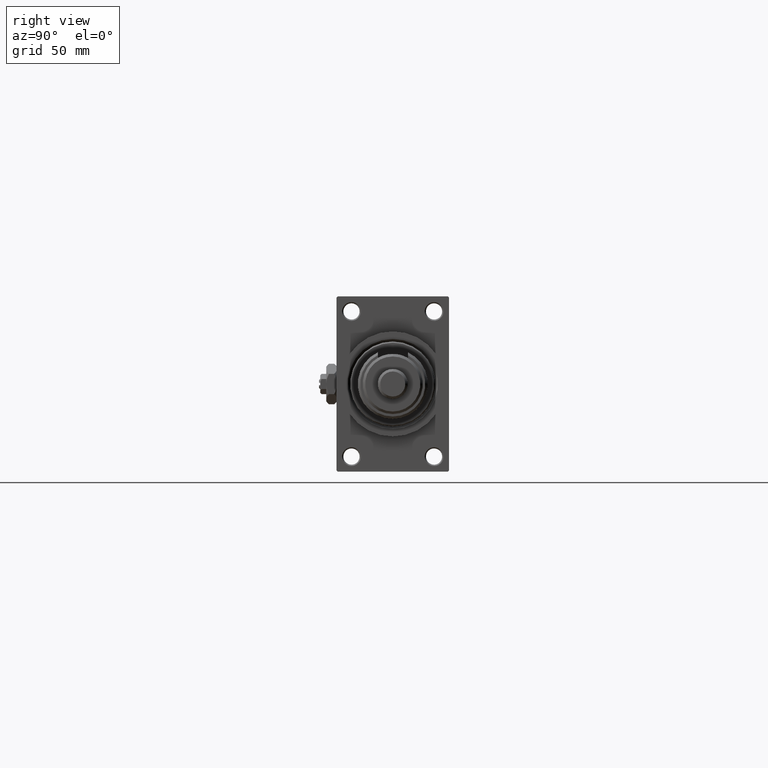
[diagram: clean part render]
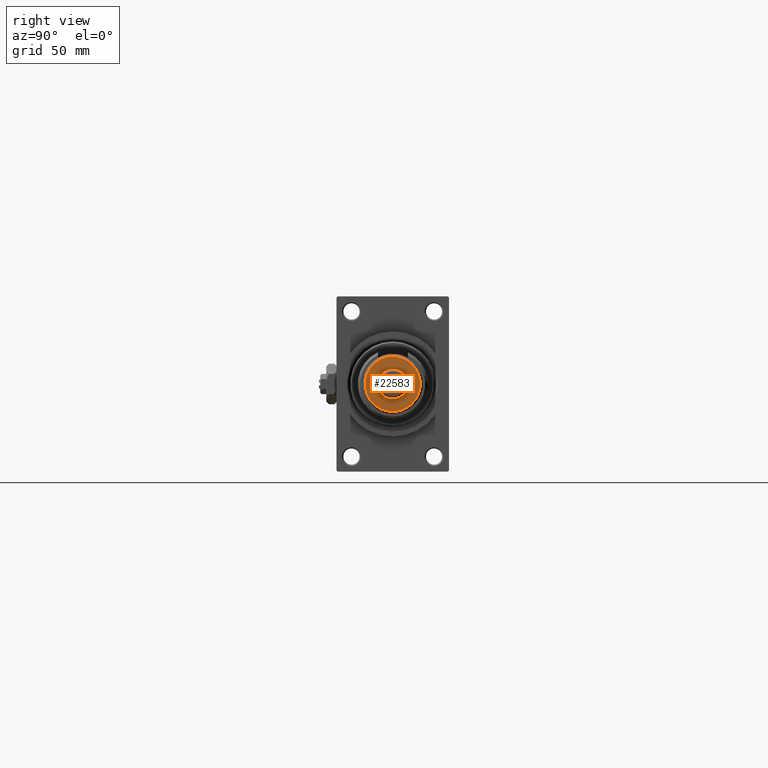
[diagram: same view with one face highlighted and labeled with its STEP entity id]
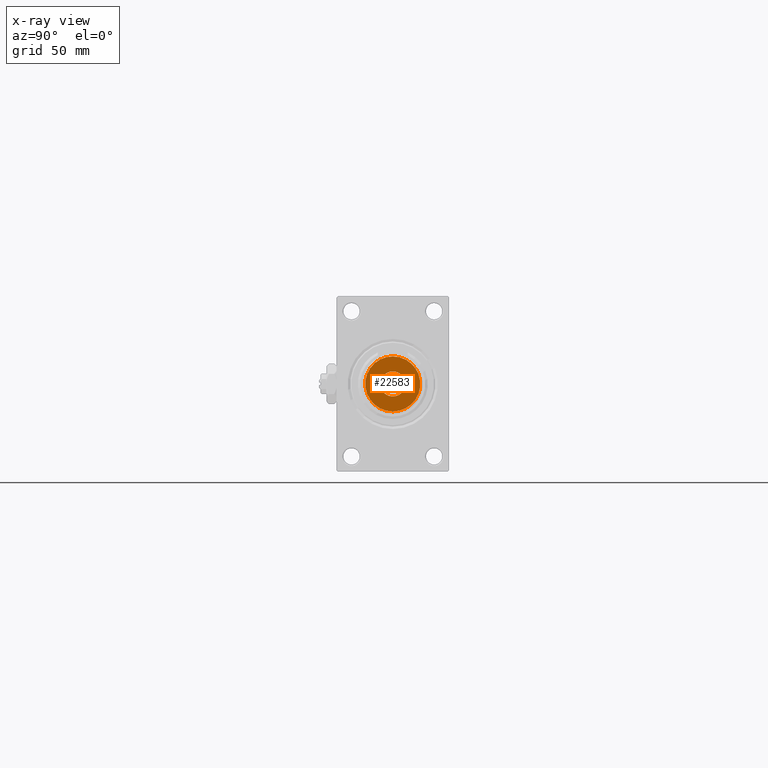
[diagram: x-ray of the same camera — body ghosted, the highlighted face saturated]
A machine part, right view. The second image highlights one B-rep face of the part: STEP entity #22583.
The next image is the same camera in x-ray: the body ghosted, the highlighted face saturated — about 0% of this face is hidden behind the body in this view.
In plain terms, the highlighted planar face has unit normal (1, 0, 0).
Its self-contained STEP definition (entity closure, byte-faithful):
#923 = DIRECTION ( 'NONE',  ( 1.000000000000000000, 0.000000000000000000, 0.000000000000000000 ) ) ;
#2293 = CIRCLE ( 'NONE', #43413, 10.99999999999999645 ) ;
#3046 = ORIENTED_EDGE ( 'NONE', *, *, #43803, .F. ) ;
#4205 = DIRECTION ( 'NONE',  ( 1.000000000000000000, 0.000000000000000000, -0.000000000000000000 ) ) ;
#6869 = VERTEX_POINT ( 'NONE', #48601 ) ;
#9583 = EDGE_CURVE ( 'NONE', #24597, #23475, #2293, .T. ) ;
#12270 = CARTESIAN_POINT ( 'NONE',  ( 0.000000000000000000, 0.000000000000000000, 22.00000000000000000 ) ) ;
#13178 = AXIS2_PLACEMENT_3D ( 'NONE', #32329, #24469, #16071 ) ;
#14109 = CARTESIAN_POINT ( 'NONE',  ( 10.99999999999999645, 1.408343819019456176E-15, 22.00000000000000000 ) ) ;
#15284 = FACE_BOUND ( 'NONE', #33699, .T. ) ;
#16071 = DIRECTION ( 'NONE',  ( 1.000000000000000000, 0.000000000000000000, 0.000000000000000000 ) ) ;
#16568 = CIRCLE ( 'NONE', #13178, 5.000000000000000000 ) ;
#17647 = CARTESIAN_POINT ( 'NONE',  ( 0.000000000000000000, 0.000000000000000000, 22.00000000000000000 ) ) ;
#19015 = CARTESIAN_POINT ( 'NONE',  ( 0.000000000000000000, 0.000000000000000000, 22.00000000000000000 ) ) ;
#19508 = CIRCLE ( 'NONE', #21186, 10.99999999999999645 ) ;
#19589 = EDGE_CURVE ( 'NONE', #23475, #24597, #19508, .T. ) ;
#20137 = DIRECTION ( 'NONE',  ( 0.000000000000000000, 0.000000000000000000, 1.000000000000000000 ) ) ;
#21186 = AXIS2_PLACEMENT_3D ( 'NONE', #12270, #20137, #923 ) ;
#22156 = DIRECTION ( 'NONE',  ( 1.000000000000000000, 0.000000000000000000, 0.000000000000000000 ) ) ;
#22583 = ADVANCED_FACE ( 'NONE', ( #39675, #15284 ), #51763, .T. ) ;
#23475 = VERTEX_POINT ( 'NONE', #46241 ) ;
#23951 = CARTESIAN_POINT ( 'NONE',  ( 0.000000000000000000, 0.000000000000000000, 22.00000000000000000 ) ) ;
#24469 = DIRECTION ( 'NONE',  ( 0.000000000000000000, 0.000000000000000000, 1.000000000000000000 ) ) ;
#24597 = VERTEX_POINT ( 'NONE', #14109 ) ;
#26107 = ORIENTED_EDGE ( 'NONE', *, *, #9583, .T. ) ;
#27373 = DIRECTION ( 'NONE',  ( 0.000000000000000000, 0.000000000000000000, 1.000000000000000000 ) ) ;
#29235 = DIRECTION ( 'NONE',  ( 0.000000000000000000, 0.000000000000000000, 1.000000000000000000 ) ) ;
#30026 = ORIENTED_EDGE ( 'NONE', *, *, #51184, .F. ) ;
#32329 = CARTESIAN_POINT ( 'NONE',  ( 0.000000000000000000, 0.000000000000000000, 22.00000000000000000 ) ) ;
#33699 = EDGE_LOOP ( 'NONE', ( #3046, #30026 ) ) ;
#33958 = DIRECTION ( 'NONE',  ( 0.000000000000000000, 0.000000000000000000, 1.000000000000000000 ) ) ;
#34764 = AXIS2_PLACEMENT_3D ( 'NONE', #17647, #29235, #45228 ) ;
#35394 = ORIENTED_EDGE ( 'NONE', *, *, #19589, .T. ) ;
#37278 = EDGE_LOOP ( 'NONE', ( #35394, #26107 ) ) ;
#38959 = CIRCLE ( 'NONE', #34764, 5.000000000000000000 ) ;
#39675 = FACE_OUTER_BOUND ( 'NONE', #37278, .T. ) ;
#39742 = AXIS2_PLACEMENT_3D ( 'NONE', #23951, #27373, #4205 ) ;
#43413 = AXIS2_PLACEMENT_3D ( 'NONE', #19015, #33958, #22156 ) ;
#43803 = EDGE_CURVE ( 'NONE', #6869, #49458, #38959, .T. ) ;
#45228 = DIRECTION ( 'NONE',  ( 1.000000000000000000, 0.000000000000000000, 0.000000000000000000 ) ) ;
#46141 = CARTESIAN_POINT ( 'NONE',  ( 5.000000000000000000, 6.123233995736766282E-16, 22.00000000000000000 ) ) ;
#46241 = CARTESIAN_POINT ( 'NONE',  ( -10.99999999999999645, 0.000000000000000000, 22.00000000000000000 ) ) ;
#48601 = CARTESIAN_POINT ( 'NONE',  ( -5.000000000000000000, 0.000000000000000000, 22.00000000000000000 ) ) ;
#49458 = VERTEX_POINT ( 'NONE', #46141 ) ;
#51184 = EDGE_CURVE ( 'NONE', #49458, #6869, #16568, .T. ) ;
#51763 = PLANE ( 'NONE',  #39742 ) ;